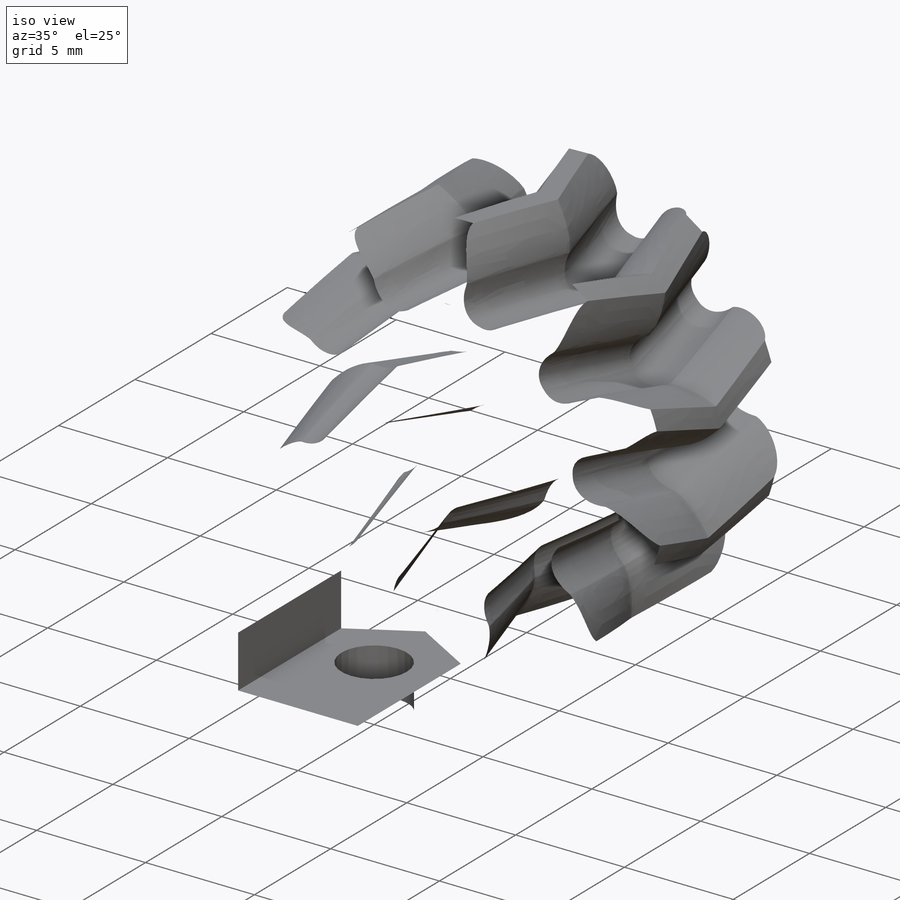
[diagram: iso view]
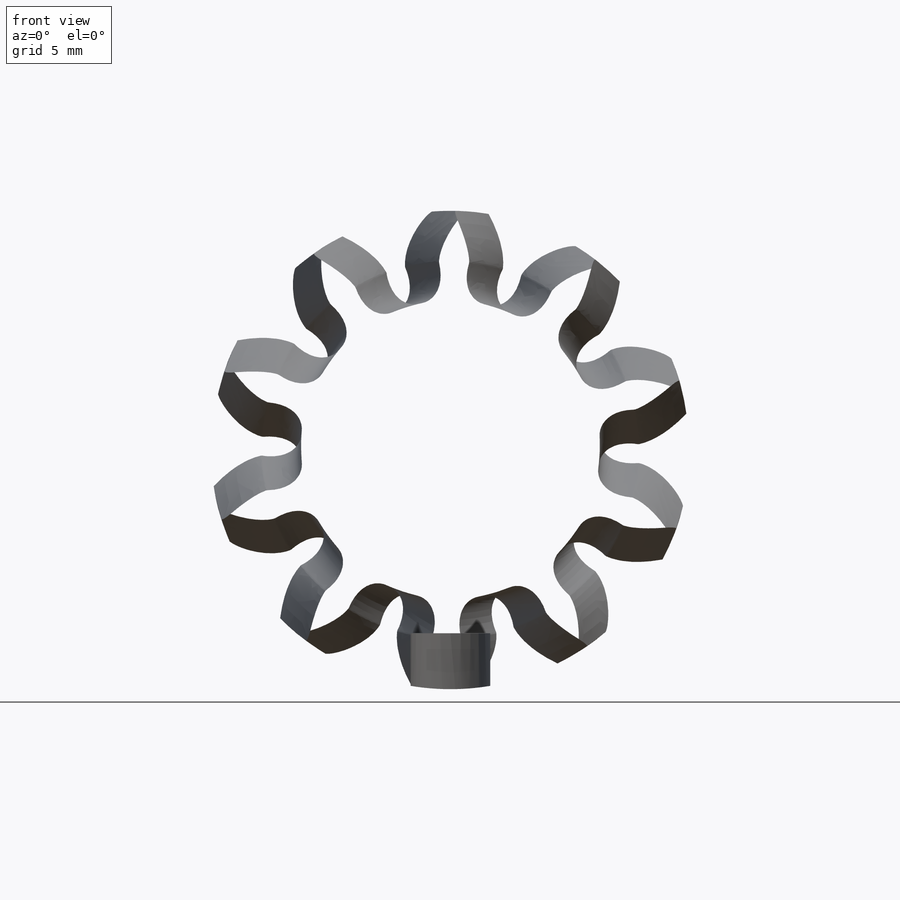
[diagram: front view]
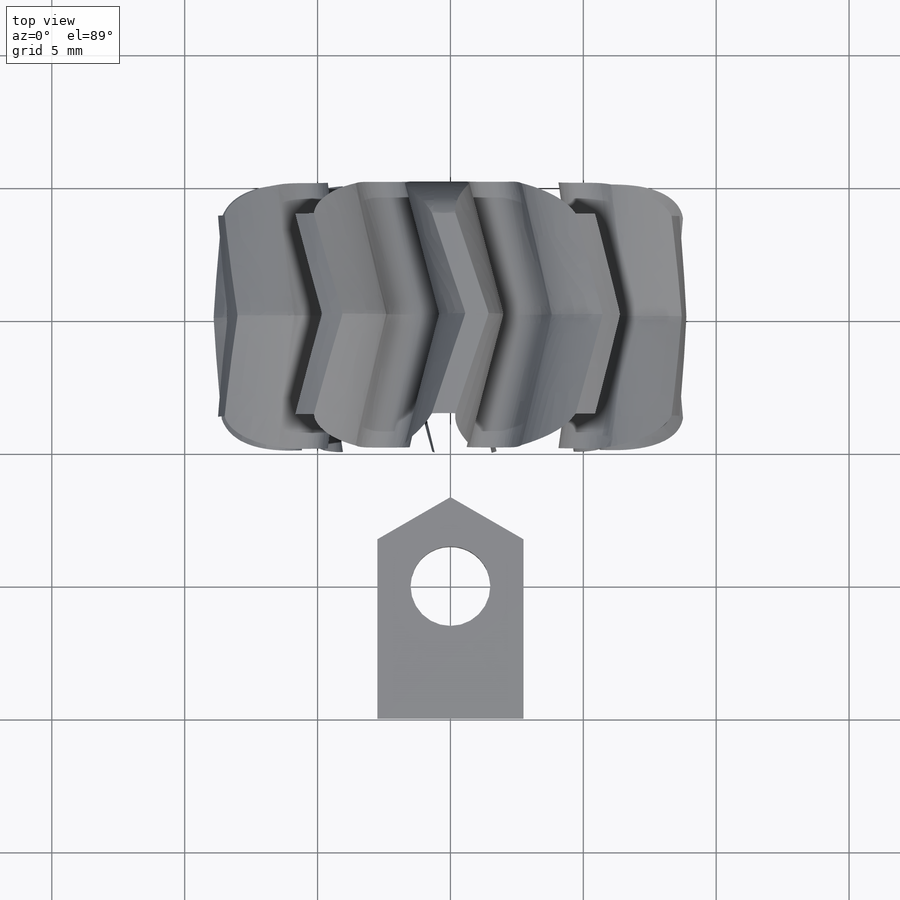
[diagram: top view]
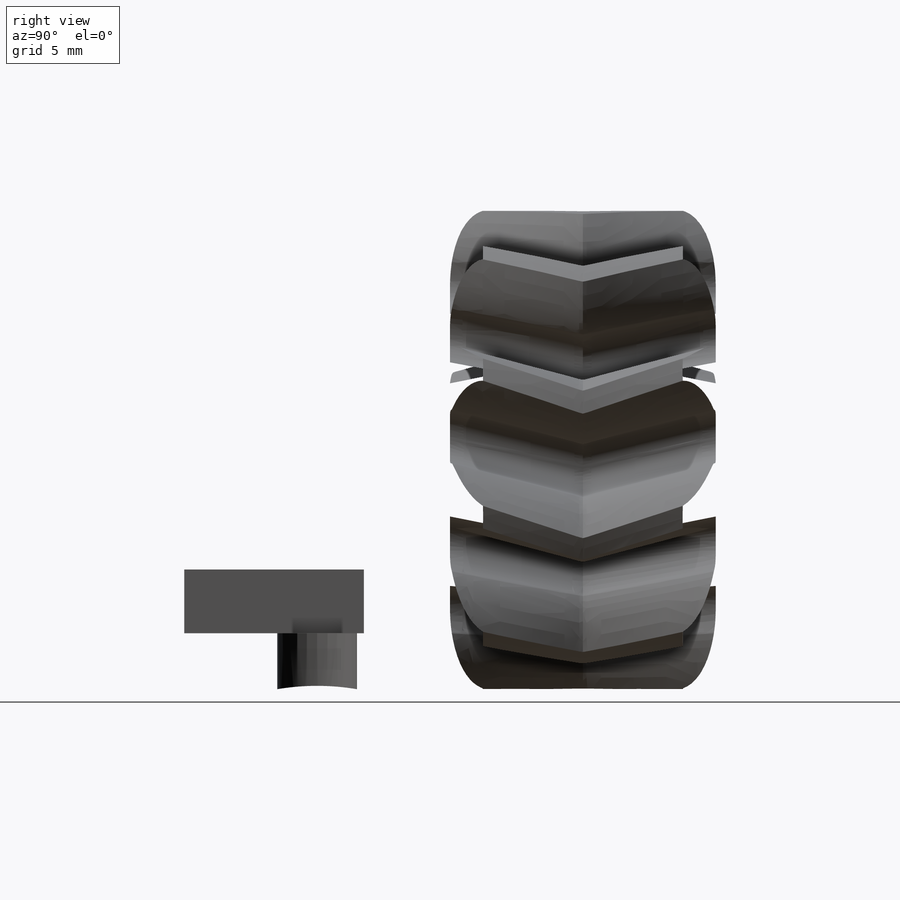
[diagram: right view]
SOLIDWORKS PART (.sldprt)
format: sldprt  version: not decoded by parser v0  size: 4,981,760 bytes
history: native  units: mm
features: sketch x10, cut_extrude x4, extrude x3, material x1, helix x1, plane x1, pattern_circular x1, mirror x1, cut_revolve x1, chamfer x1 + 1 further entry (+13 scaffold rows collapsed)
feature tree (38):
  scaffold x13  (default folders/planes/origin — collapsed)
  material  "Material <not specified>"
  "Design Table"
  sketch  "Pitch Diameter"  dims[D1=15.0mm]
  sketch  "Sketch7"
  helix  "Helix/Spiral1"  Pitch=5mm
  sketch  "Sketch1"  dims[c1.D1=14.0mm c1.D2=5.0mm c1.D3=14.0mm c1.D4=~22.241922mm c2.D1=~5.360874mm c2.D2=~9.467075mm c3.D1=0.0mm c3.D2=0.0mm c3.D3=~0.30587mm c3.D4=~0.558347mm c3.D5=~0.76119mm c3.D6=~0.918731mm c3.D7=~1.035813mm c3.D8=~1.11773mm c3.D9=~1.170158mm c3.D10=~1.199084mm c3.D11=~1.210735mm c3.D12=1.2115mm c3.D13=~1.202283mm c3.D14=~1.144513mm c3.D15=~1.104121mm c3.D16=~1.08134mm c3.D17=~1.077041mm c3.D18=~1.093203mm c3.D19=~1.133622mm c3.D20=~1.20467mm c3.D21=~1.315015mm c3.D22=~1.471483mm c3.D23=~1.669221mm c3.D24=0.0mm c3.D25=~9.532099mm c3.D26=~9.169424mm c3.D27=~8.818355mm c3.D28=~8.484765mm c3.D29=~8.174006mm c3.D30=~7.890855mm c3.D31=~7.639471mm c3.D32=~7.423354mm c3.D33=~7.245311mm c3.D34=~7.107433mm c3.D35=~7.011076mm c3.D36=~6.962831mm c3.D37=~6.781844mm c3.D38=~6.604717mm c3.D39=~6.431222mm c3.D40=~6.260756mm c3.D41=~6.092413mm c3.D42=~5.925426mm c3.D43=~5.760484mm c3.D44=~5.602732mm c3.D45=~5.465863mm c3.D46=~5.371622mm]
  extrude  "Tooth"  Depth=5mm
  plane  "Plane1"
  pattern_circular  "Teeth"  Count=10 Angle=360deg
  sketch  "Sketch6"  dims[D1=18.0mm]
  cut_extrude  "Addendum"  Depth=0mm
  mirror  "Mirror1"
  sketch  "Sketch8"  dims[c1.D1=1.5mm c1.D2=~4.055847mm c2.D2=45.0deg c2.D3=0.1mm c3.D2=0.75mm c3.D1=1.5mm c4.D2=~0.050004mm]
  cut_revolve  "Rounded edge"  Angle=360deg
  sketch  "Sketch9"  dims[D1=6.35mm]
  cut_extrude  "Cut-Extrude1"  Depth=10mm
  sketch  "Sketch10"
  extrude  "Boss-Extrude1"  Depth=10mm
  sketch  "Sketch11"  dims[D1=3.0mm D2=5.0mm]
  cut_extrude  "Cut-Extrude2"  Depth=10mm
  sketch  "Sketch12"  dims[D1=5.5mm D2=2.4mm D3=4.5mm]
  cut_extrude  "Cut-Extrude3"  Depth=9mm
  sketch  "Sketch13"  dims[D1=5.5mm D2=0.3mm]
  extrude  "Boss-Extrude2"  Depth=3mm
  chamfer  "Chamfer1"  Distance=2.5mm Angle=45deg
decode coverage: 19 of 22 modeling features carry decoded parameters; 1 rows unclassified (native names shown)
note: ~ marks probable driven/reference dimensions
note: suppression state not decoded; provenance and decode notes live in map.json
